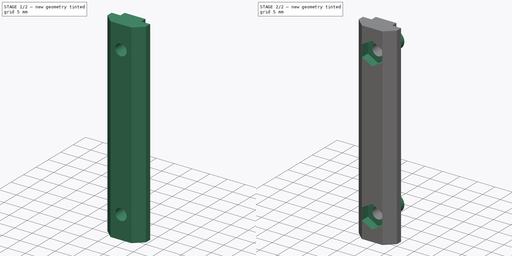
[diagram: build sequence overview — one tinted view per stage of 2, left to right]
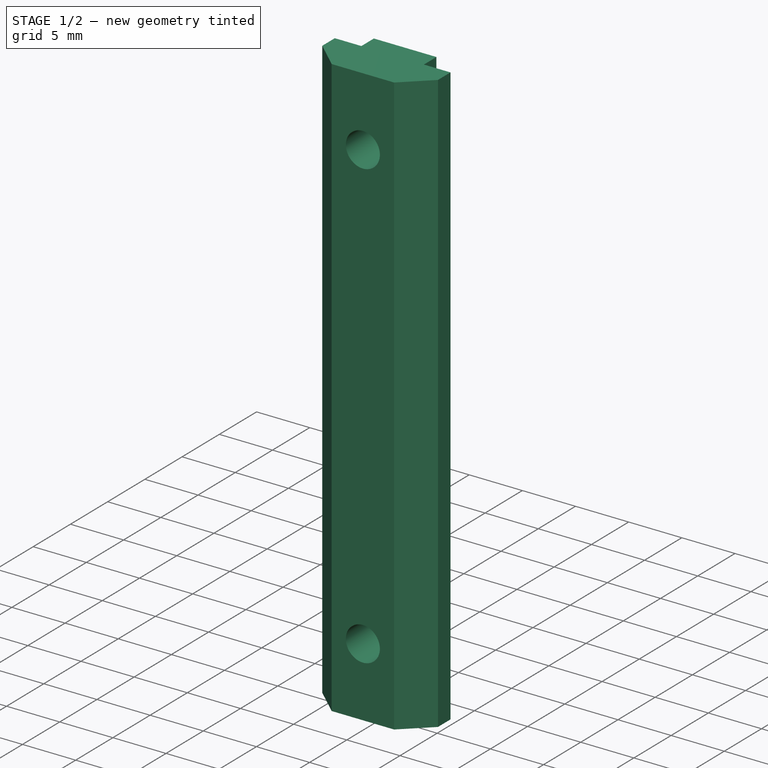
[diagram: stage 1 of 2 — iso view after this stage's code; geometry added in this stage tinted green]
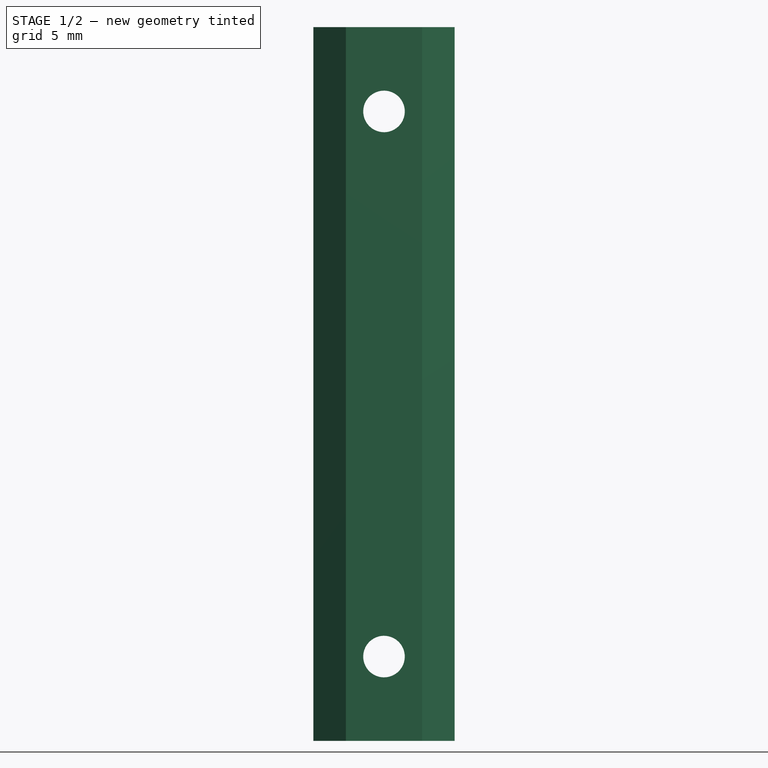
[diagram: stage 1 of 2 — front view after this stage's code; geometry added in this stage tinted green]
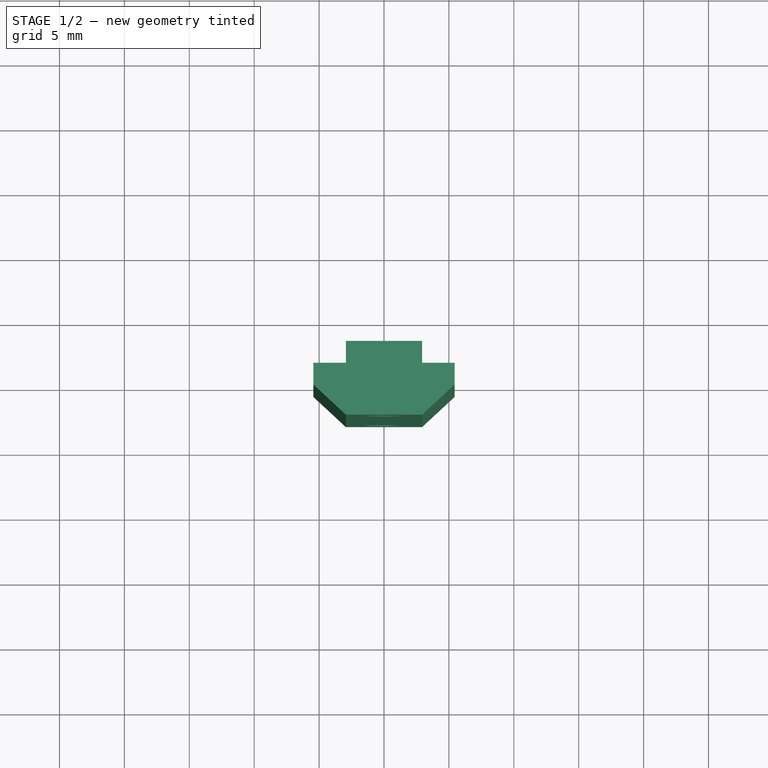
[diagram: stage 1 of 2 — top view after this stage's code; geometry added in this stage tinted green]
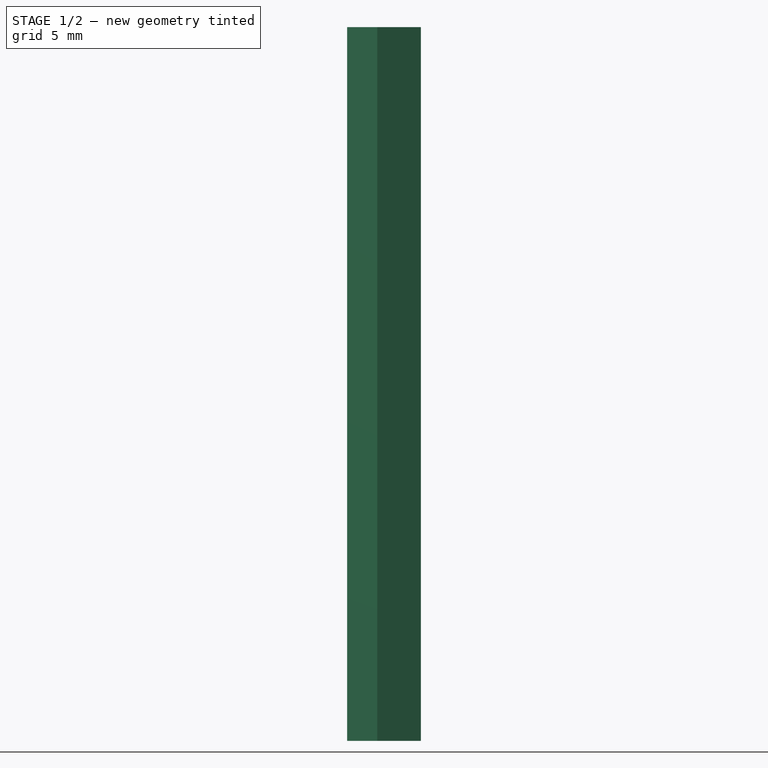
[diagram: stage 1 of 2 — right view after this stage's code; geometry added in this stage tinted green]
FCSTD DOCUMENT  (FreeCAD 0.20R29603 (Git))
Label: trem-55-P2-rolamento
License: All rights reserved
LicenseURL: http://en.wikipedia.org/wiki/All_rights_reserved
objects: Sketcher::SketchObject×4, PartDesign::Pad×2, PartDesign::Pocket×2, PartDesign::Body×1
note: 13 computed .brp shape members not serialized (recipe doc carries the construction recipe); baked Part::Feature solids carry a one-line shape summary decoded from their .brp

FEATURE [Sketcher::SketchObject] Sketch
  FullyConstrained = true
  MapMode = 5
  Support = -> [XY_Plane]
  sketch-geometry (16):
    g0: LineSegment StartX=2.94 StartY=-2.84 StartZ=0 EndX=-2.94 EndY=-2.84 EndZ=0
    g1: LineSegment StartX=-2.94 StartY=-2.84 StartZ=0 EndX=-5.44 EndY=-0.52 EndZ=0
    g2: LineSegment StartX=-5.44 StartY=-0.52 StartZ=0 EndX=-5.44 EndY=1.16 EndZ=0
    g3: LineSegment StartX=-5.44 StartY=1.16 StartZ=0 EndX=-2.94 EndY=1.16 EndZ=0
    g4: LineSegment StartX=-2.94 StartY=1.16 StartZ=0 EndX=-2.94 EndY=2.84 EndZ=0
    g5: LineSegment StartX=-2.94 StartY=2.84 StartZ=0 EndX=2.94 EndY=2.84 EndZ=0
    g6: LineSegment StartX=2.94 StartY=2.84 StartZ=0 EndX=2.94 EndY=1.16 EndZ=0
    g7: LineSegment StartX=2.94 StartY=1.16 StartZ=0 EndX=5.44 EndY=1.16 EndZ=0
    g8: LineSegment StartX=5.44 StartY=1.16 StartZ=0 EndX=5.44 EndY=-0.52 EndZ=0
    g9: LineSegment StartX=5.44 StartY=-0.52 StartZ=0 EndX=2.94 EndY=-2.84 EndZ=0
    g10: LineSegment StartX=-2.94 StartY=-2.84 StartZ=0 EndX=0 EndY=-2.84 EndZ=0
    g11: LineSegment StartX=2.94 StartY=-2.84 StartZ=0 EndX=0 EndY=-2.84 EndZ=0
    g12: LineSegment StartX=-2.94 StartY=2.84 StartZ=0 EndX=0 EndY=2.84 EndZ=0
    g13: LineSegment StartX=0 StartY=2.84 StartZ=0 EndX=2.94 EndY=2.84 EndZ=0
    g14: LineSegment StartX=0 StartY=2.84 StartZ=0 EndX=0 EndY=0 EndZ=0
    g15: LineSegment StartX=0 StartY=0 StartZ=0 EndX=0 EndY=-2.84 EndZ=0
  constraints (45):
    c: Horizontal(g0)
    c: Coincident(g0,g1)
    c: Coincident(g1,g2)
    c: Vertical(g2)
    c: Coincident(g2,g3)
    c: Horizontal(g3)
    c: Coincident(g3,g4)
    c: Vertical(g4)
    c: Coincident(g4,g5)
    c: Horizontal(g5)
    c: Coincident(g5,g6)
    c: Coincident(g6,g7)
    c: Horizontal(g7)
    c: Coincident(g7,g8)
    c: Coincident(g8,g9)
    c: Coincident(g9,g0)
    c: Equal(g3,g7)
    c: Vertical(g6)
    c: Equal(g4,g6)
    c: Vertical(g8)
    c: Equal(g8,g2)
    c: Equal(g1,g9)
    c: Coincident(g13,g12)
    c: Coincident(g12,g4)
    c: Coincident(g13,g5)
    c: Coincident(g0,g10)
    c: Coincident(g11,g0)
    c: Coincident(g11,g10)
    c: Equal(g11,g10)
    c: Equal(g12,g13)
    c: Vertical(g12,g-1)
    c: PointOnObject(g12,g5)
    c: PointOnObject(g10,g0)
    c: DistanceX(g5,g5) = 5.88
    c: DistanceY(g4,g4) = 1.68
    c: DistanceY(g0,g5) = 5.68
    c: DistanceX(g1,g8) = 10.88
    c: Equal(g2,g4)
    c: Coincident(g15,g10)
    c: Coincident(g15,g-1)
    c: Coincident(g14,g-1)
    c: PointOnObject(g14,g5)
    c: PointOnObject(g14,g-2)
    c: Equal(g14,g15)
    c: Equal(g0,g5)
FEATURE [PartDesign::Pad] Pad
  Direction = (0,0,1)
  Length = 55
  Length2 = 100
  Profile = -> Sketch
  Type = 0
FEATURE [Sketcher::SketchObject] Sketch001
  ExternalGeometry = -> [Pad]
  FullyConstrained = true
  MapMode = 5
  Placement = pos=(0,2.84,0) rot=(0,0.707107,0.707107;3.14159rad)
  Support = -> [Pad]
  sketch-geometry (6):
    g0: Circle CenterX=0 CenterY=48.5 CenterZ=0 NormalX=0 NormalY=0 NormalZ=1 AngleXU=0 Radius=1.6
    g1: LineSegment StartX=2.94 StartY=55 StartZ=0 EndX=-2.94 EndY=0 EndZ=0
    g2: GeomPoint X=0 Y=27.5 Z=0
    g3: Circle CenterX=0 CenterY=6.5 CenterZ=0 NormalX=0 NormalY=0 NormalZ=1 AngleXU=0 Radius=1.6
    g4: LineSegment StartX=0 StartY=48.5 StartZ=0 EndX=0 EndY=27.5 EndZ=0
    g5: LineSegment StartX=0 StartY=27.5 StartZ=0 EndX=0 EndY=6.5 EndZ=0
  constraints (14):
    c: Radius(g0) = 1.6
    c: Coincident(g1,g-3)
    c: Coincident(g1,g-4)
    c: PointOnObject(g0,g-2)
    c: PointOnObject(g2,g1)
    c: PointOnObject(g2,g-2)
    c: PointOnObject(g3,g-2)
    c: Equal(g3,g0)
    c: Coincident(g4,g0)
    c: Coincident(g5,g4)
    c: Coincident(g5,g3)
    c: Equal(g5,g4)
    c: Coincident(g2,g4)
    c: DistanceY(g3,g0) = 42
FEATURE [PartDesign::Pocket] Pocket
  BaseFeature = -> Pad
  Direction = (0,-1,2e-16)
  Length = 0
  Length2 = 100
  Profile = -> Sketch001
  Type = 3
  UpToFace = -> Pad [Face1]
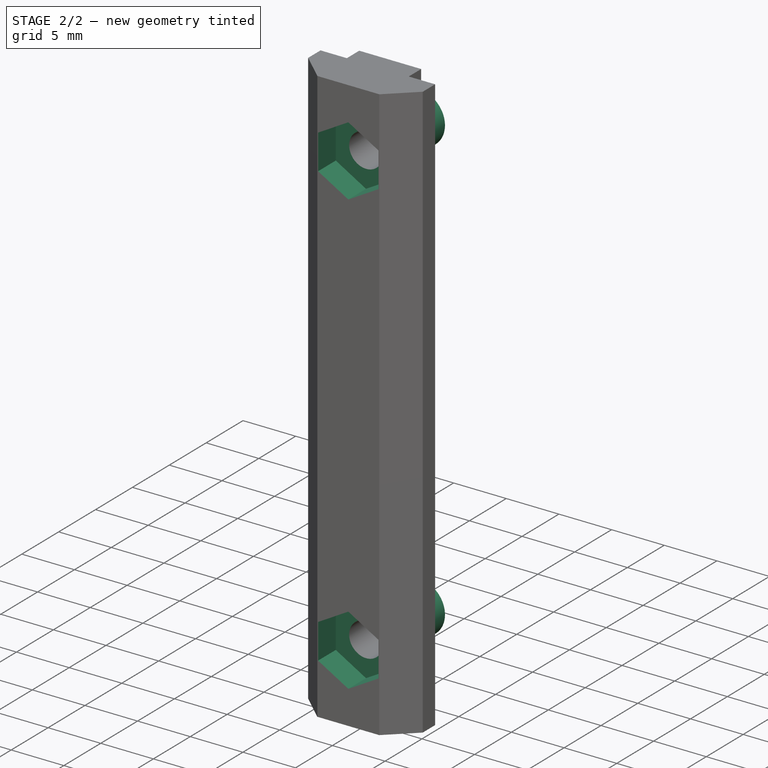
[diagram: stage 2 of 2 — iso view after this stage's code; geometry added in this stage tinted green]
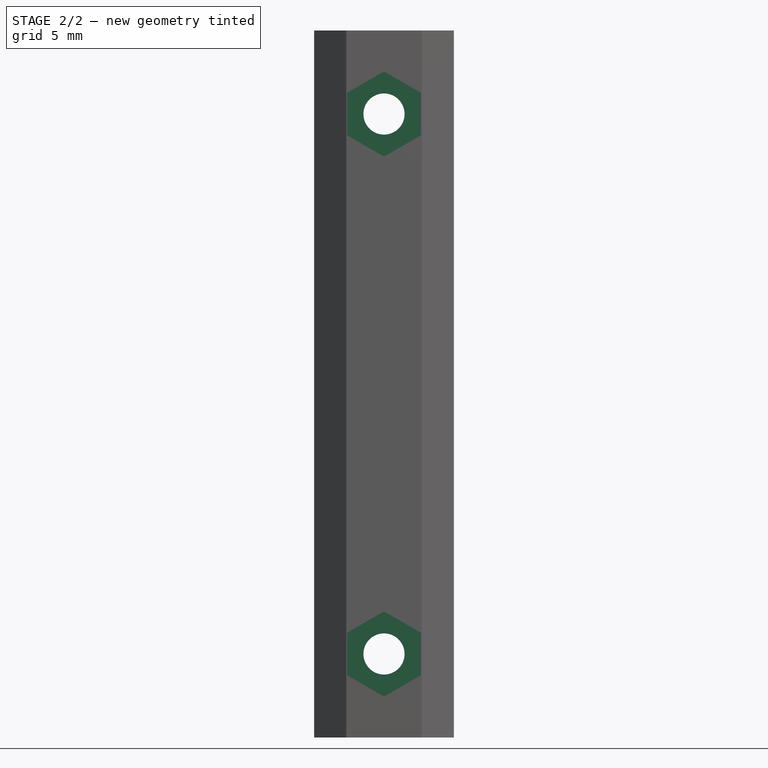
[diagram: stage 2 of 2 — front view after this stage's code; geometry added in this stage tinted green]
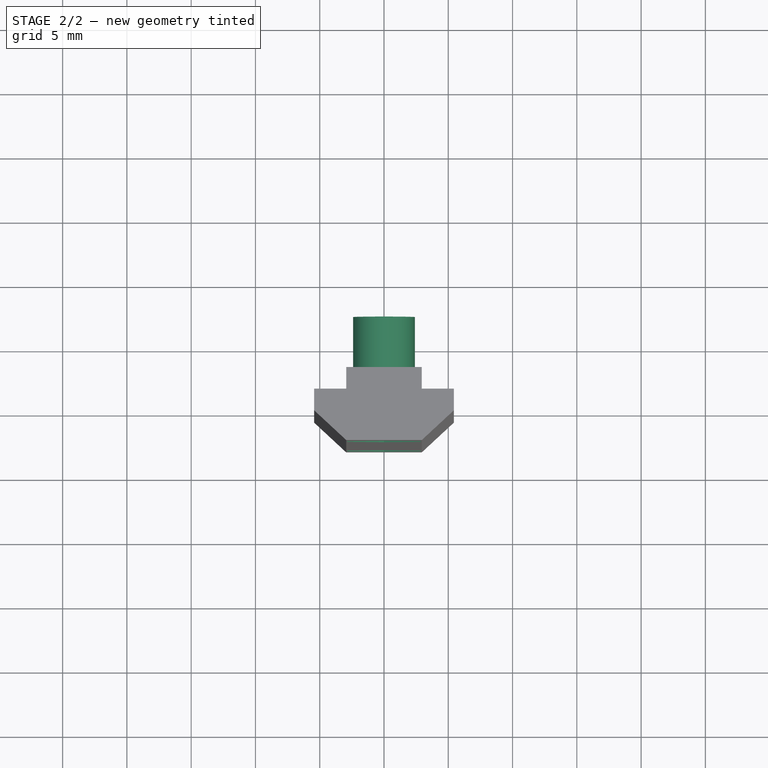
[diagram: stage 2 of 2 — top view after this stage's code; geometry added in this stage tinted green]
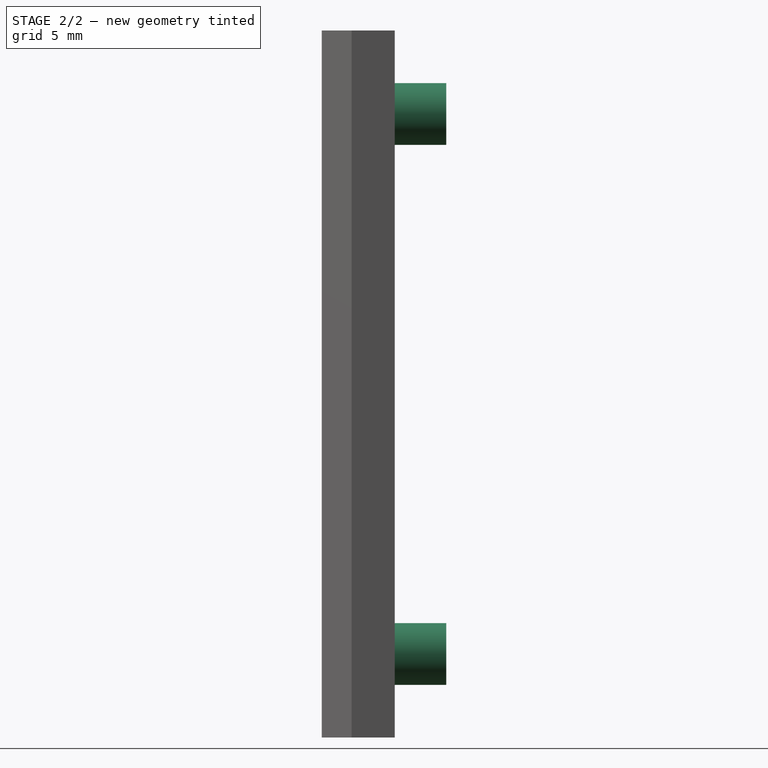
[diagram: stage 2 of 2 — right view after this stage's code; geometry added in this stage tinted green]
FEATURE [Sketcher::SketchObject] Sketch002
  ExternalGeometry = -> [Pocket]
  FullyConstrained = true
  MapMode = 5
  Placement = pos=(0,-2.84,0) rot=(1,0,0;1.5708rad)
  Support = -> [Pocket]
  sketch-geometry (14):
    g0: LineSegment StartX=0 StartY=45.186 StartZ=0 EndX=2.87 EndY=46.843 EndZ=0
    g1: LineSegment StartX=2.87 StartY=46.843 StartZ=0 EndX=2.87 EndY=50.157 EndZ=0
    g2: LineSegment StartX=2.87 StartY=50.157 StartZ=0 EndX=4e-16 EndY=51.814 EndZ=0
    g3: LineSegment StartX=4e-16 StartY=51.814 StartZ=0 EndX=-2.87 EndY=50.157 EndZ=0
    g4: LineSegment StartX=-2.87 StartY=50.157 StartZ=0 EndX=-2.87 EndY=46.843 EndZ=0
    g5: LineSegment StartX=-2.87 StartY=46.843 StartZ=0 EndX=0 EndY=45.186 EndZ=0
    g6: Circle CenterX=0 CenterY=48.5 CenterZ=0 NormalX=0 NormalY=0 NormalZ=1 AngleXU=0 Radius=3.31399
    g7: LineSegment StartX=0 StartY=3.18601 StartZ=0 EndX=2.87 EndY=4.843 EndZ=0
    g8: LineSegment StartX=2.87 StartY=4.843 StartZ=0 EndX=2.87 EndY=8.157 EndZ=0
    g9: LineSegment StartX=2.87 StartY=8.157 StartZ=0 EndX=4e-16 EndY=9.81399 EndZ=0
    g10: LineSegment StartX=4e-16 StartY=9.81399 StartZ=0 EndX=-2.87 EndY=8.157 EndZ=0
    g11: LineSegment StartX=-2.87 StartY=8.157 StartZ=0 EndX=-2.87 EndY=4.843 EndZ=0
    g12: LineSegment StartX=-2.87 StartY=4.843 StartZ=0 EndX=0 EndY=3.18601 EndZ=0
    g13: Circle CenterX=0 CenterY=6.5 CenterZ=0 NormalX=0 NormalY=0 NormalZ=1 AngleXU=0 Radius=3.31399
  constraints (32):
    c: Coincident(g0,g1)
    c: Coincident(g1,g2)
    c: Coincident(g2,g3)
    c: Coincident(g3,g4)
    c: Coincident(g4,g5)
    c: Coincident(g5,g0)
    c: Equal(g0, g1-g5) x5
    c: PointOnObject(g0,g6)
    c: PointOnObject(g1,g6)
    c: PointOnObject(g2,g6)
    c: PointOnObject(g3,g6)
    c: PointOnObject(g4,g6)
    c: PointOnObject(g5,g6)
    c: Coincident(g6,g-3)
    c: PointOnObject(g5,g-2)
    c: Coincident(g7,g8)
    c: Coincident(g8,g9)
    c: Coincident(g9,g10)
    c: Coincident(g10,g11)
    c: Coincident(g11,g12)
    c: Coincident(g12,g7)
    c: Equal(g7, g8-g12) x5
    c: PointOnObject(g7,g13)
    c: PointOnObject(g8,g13)
    c: PointOnObject(g9,g13)
    c: PointOnObject(g10,g13)
    c: PointOnObject(g11,g13)
    c: PointOnObject(g12,g13)
    c: Coincident(g13,g-4)
    c: Vertical(g11)
    c: Equal(g6,g13)
    c: DistanceX(g3,g1) = 5.74
FEATURE [PartDesign::Pocket] Pocket001
  BaseFeature = -> Pocket
  Direction = (0,1,-2e-16)
  Length = 2.4
  Length2 = 5
  Profile = -> Sketch002
  ReferenceAxis = -> Sketch002 [N_Axis]
  Type = 0
FEATURE [Sketcher::SketchObject] Sketch003
  ExternalGeometry = -> [Pocket001]
  FullyConstrained = true
  MapMode = 5
  Placement = pos=(0,2.84,0) rot=(0,0.707107,0.707107;3.14159rad)
  Support = -> [Pocket001]
  sketch-geometry (4):
    g0: Circle CenterX=0 CenterY=6.5 CenterZ=0 NormalX=0 NormalY=0 NormalZ=1 AngleXU=0 Radius=2.4
    g1: Circle CenterX=0 CenterY=6.5 CenterZ=0 NormalX=0 NormalY=0 NormalZ=1 AngleXU=0 Radius=1.6
    g2: Circle CenterX=0 CenterY=48.5 CenterZ=0 NormalX=0 NormalY=0 NormalZ=1 AngleXU=0 Radius=2.4
    g3: Circle CenterX=0 CenterY=48.5 CenterZ=0 NormalX=0 NormalY=0 NormalZ=1 AngleXU=0 Radius=1.6
  constraints (8):
    c: Coincident(g0,g-4)
    c: Coincident(g1,g0)
    c: Coincident(g2,g-3)
    c: Coincident(g3,g2)
    c: Equal(g3,g-3)
    c: Equal(g1,g-4)
    c: Equal(g0,g2)
    c: Radius(g2) = 2.4
FEATURE [PartDesign::Pad] Pad001
  BaseFeature = -> Pocket001
  Direction = (0,1,-2e-16)
  Length = 4
  Length2 = 10
  Profile = -> Sketch003
  ReferenceAxis = -> Sketch003 [N_Axis]
  Type = 0
FEATURE [PartDesign::Body] Body
  Group = -> [Sketch,Pad,Sketch001,Pocket,Sketch002,Pocket001,Sketch003,Pad001]
  Origin = -> Origin
  Tip = -> Pad001
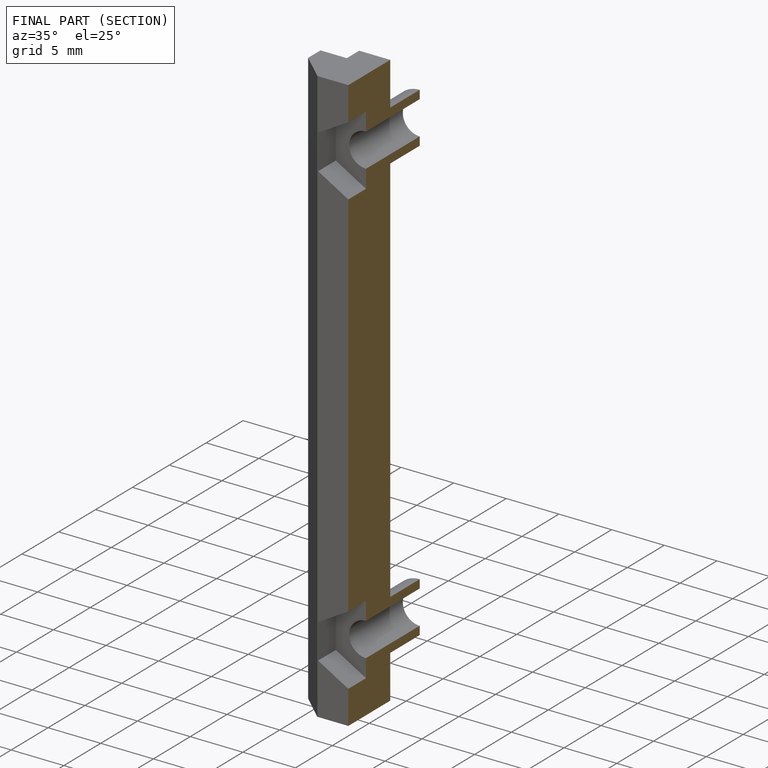
[diagram: finished part — half-section view (interior)]
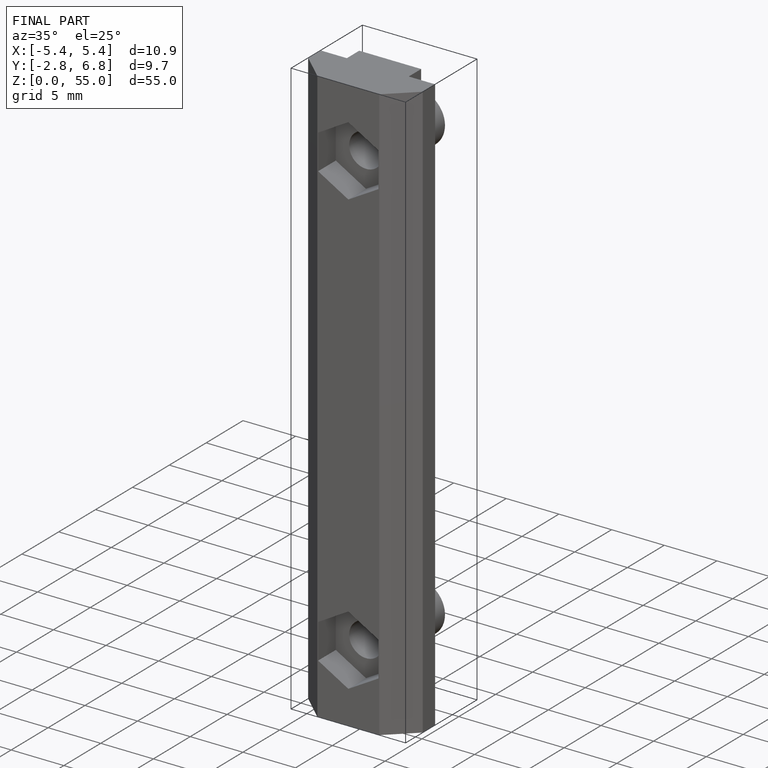
[diagram: finished part — iso view with bounding-box wireframe]
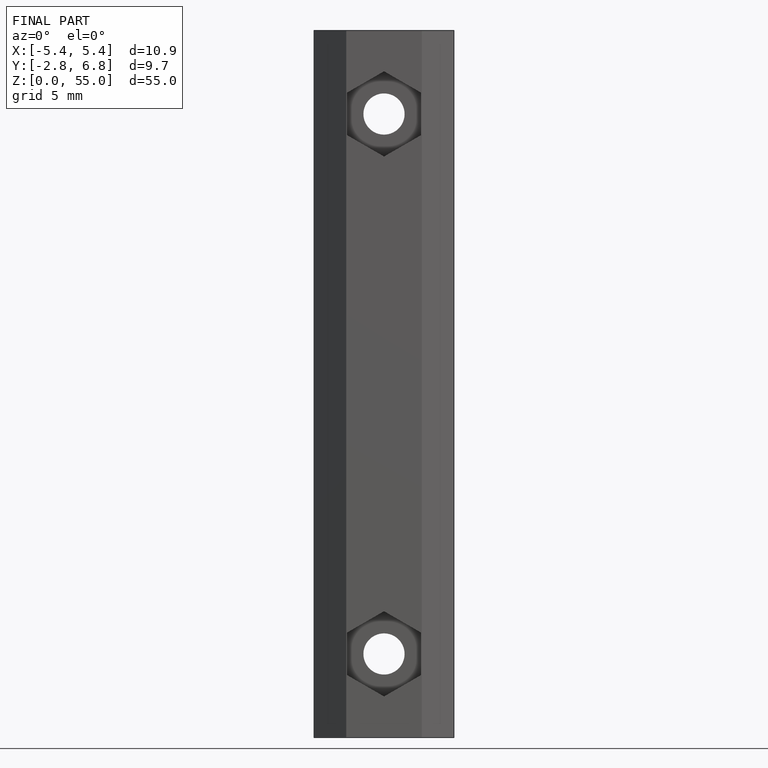
[diagram: finished part — front view with bounding-box wireframe]
